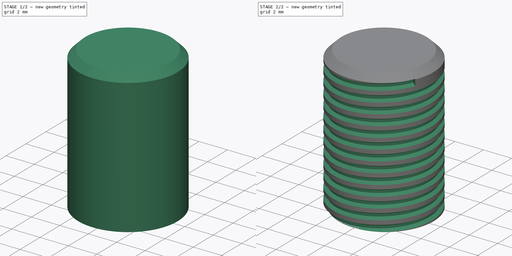
[diagram: build sequence overview — one tinted view per stage of 2, left to right]
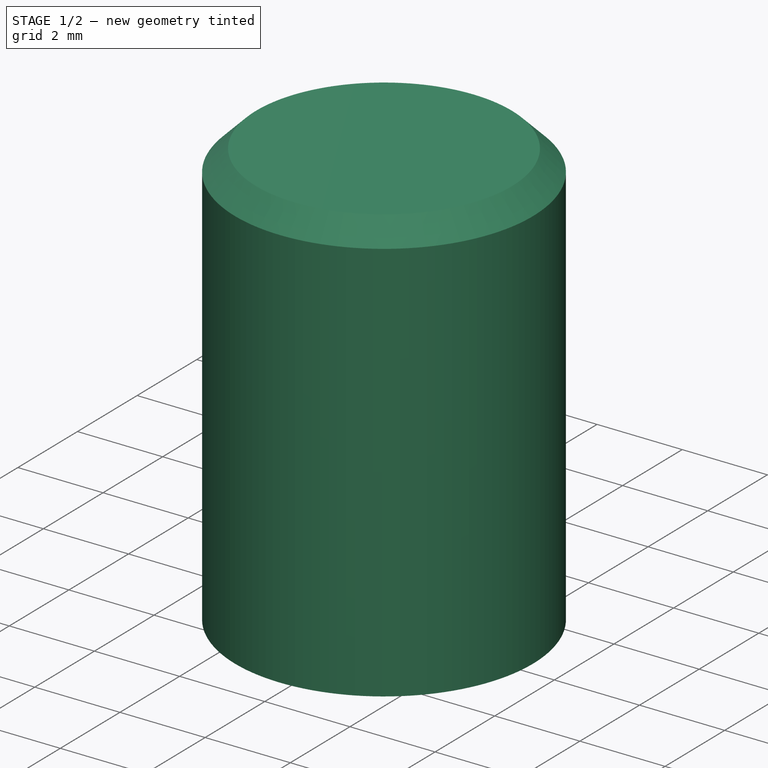
[diagram: stage 1 of 2 — iso view after this stage's code; geometry added in this stage tinted green]
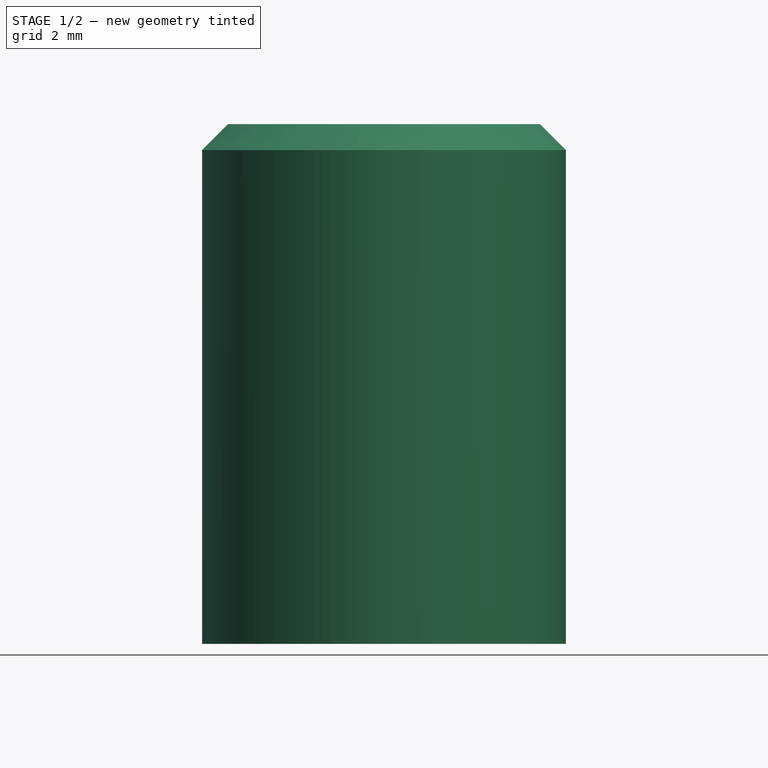
[diagram: stage 1 of 2 — front view after this stage's code; geometry added in this stage tinted green]
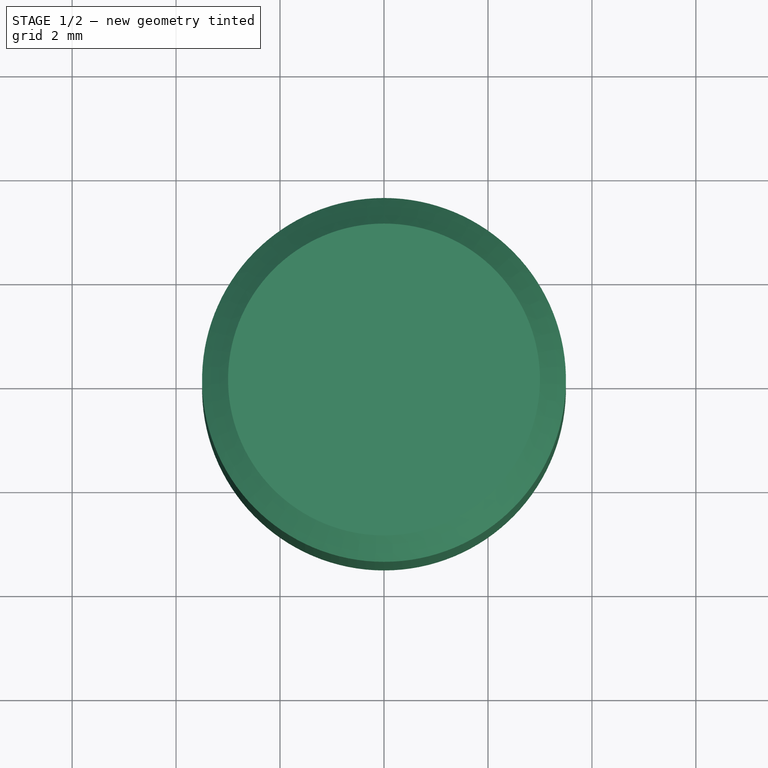
[diagram: stage 1 of 2 — top view after this stage's code; geometry added in this stage tinted green]
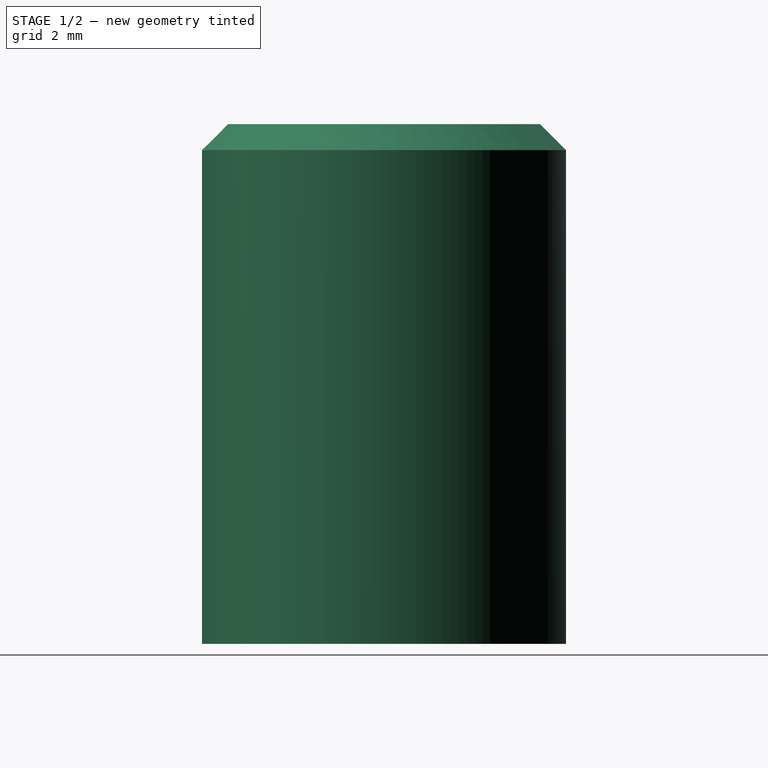
[diagram: stage 1 of 2 — right view after this stage's code; geometry added in this stage tinted green]
FCSTD DOCUMENT  (FreeCAD 0.19R16945 (Git))
Label: B6-M7x0.75x10.0mm
License: All rights reserved
LicenseURL: http://en.wikipedia.org/wiki/All_rights_reserved
objects: Sketcher::SketchObject×2, PartDesign::Pad×1, Part::Helix×1, PartDesign::ShapeBinder×1, PartDesign::Chamfer×1, PartDesign::SubtractivePipe×1, PartDesign::Body×1, App::Part×1
note: 10 computed .brp shape members not serialized (recipe doc carries the construction recipe); baked Part::Feature solids carry a one-line shape summary decoded from their .brp

FEATURE [Sketcher::SketchObject] Sketch
  AttachmentOffset = pos=(0,0,0) rot=(0,0,1;1.5708rad)
  MapMode = 5
  Placement = pos=(0,0,0) rot=(0,0,1;1.5708rad)
  Support = -> [XY_Plane]
  sketch-geometry (1):
    g0: Circle CenterX=0 CenterY=0 CenterZ=0 NormalX=0 NormalY=0 NormalZ=1 AngleXU=0 Radius=3.5
  constraints (2):
    c: Coincident(g0,g-1)
    c: Radius(g0) = 3.5
FEATURE [PartDesign::Pad] Pad
  Length = 10
  Length2 = 100
  Profile = -> Sketch
  Type = 0
FEATURE [Part::Helix] Helix
  Angle = 0
  AttacherType = Attacher::AttachEngine3D
  Height = 9.7
  LocalCoord = 0
  Pitch = 0.75
  Radius = 3.5
  Style = 1
FEATURE [Sketcher::SketchObject] Sketch001
  MapMode = 5
  Placement = pos=(0,0,0) rot=(0.57735,0.57735,0.57735;2.0944rad)
  Support = -> [YZ_Plane]
  sketch-geometry (4):
    g0: LineSegment StartX=3.26326 StartY=-0.12074 StartZ=0 EndX=3.54085 EndY=0.039529 EndZ=0
    g1: LineSegment StartX=3.54085 StartY=0.039529 StartZ=0 EndX=3.54085 EndY=-0.468509 EndZ=0
    g2: LineSegment StartX=3.54085 StartY=-0.468509 StartZ=0 EndX=3.26326 EndY=-0.30824 EndZ=0
    g3: LineSegment StartX=3.26326 StartY=-0.30824 StartZ=0 EndX=3.26326 EndY=-0.12074 EndZ=0
  constraints (9):
    c: Coincident(g0,g1)
    c: Coincident(g1,g2)
    c: Coincident(g2,g3)
    c: Coincident(g3,g0)
    c: Vertical(g1)
    c: Vertical(g3)
    c: Angle(g2,g0) = 1.0472
    c: DistanceY(g3,g3) = 0.1875
    c: Equal(g0,g2)
FEATURE [PartDesign::ShapeBinder] ReferenceHelix
  Support = -> [Helix]
  TraceSupport = false
FEATURE [PartDesign::Chamfer] Chamfer
  Base = -> Pad [Edge3]
  BaseFeature = -> Pad
  Size = 0.5
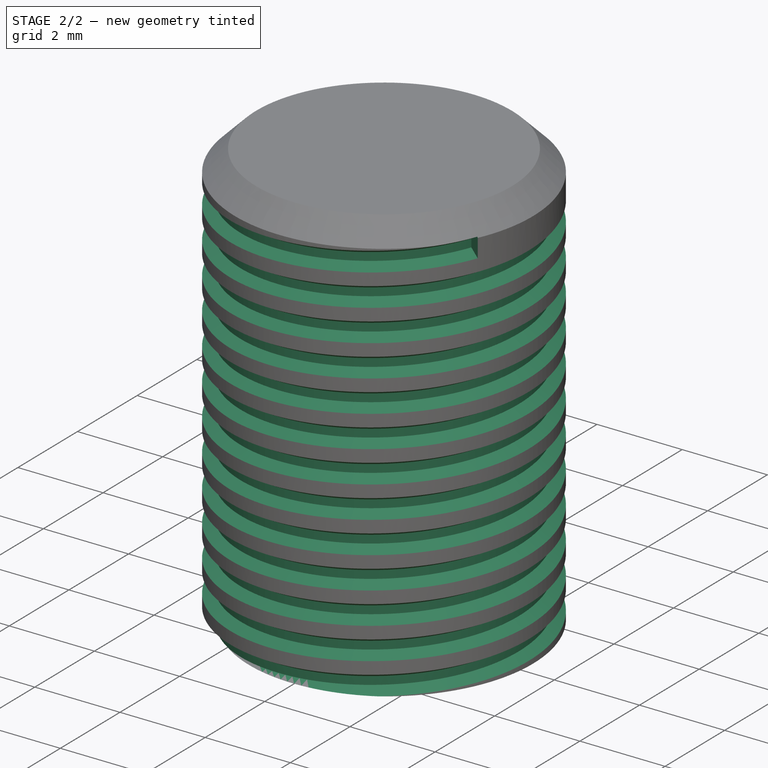
[diagram: stage 2 of 2 — iso view after this stage's code; geometry added in this stage tinted green]
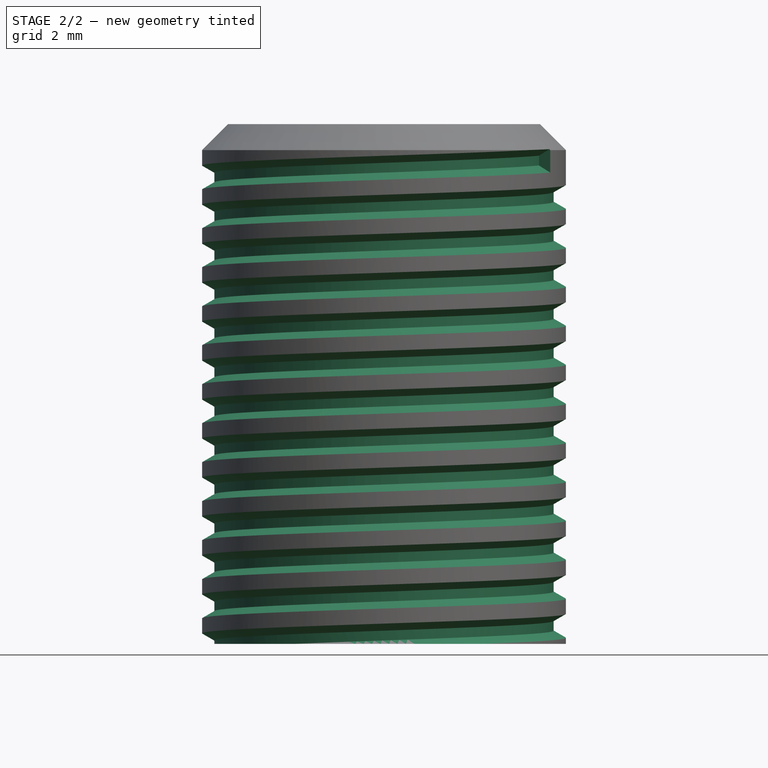
[diagram: stage 2 of 2 — front view after this stage's code; geometry added in this stage tinted green]
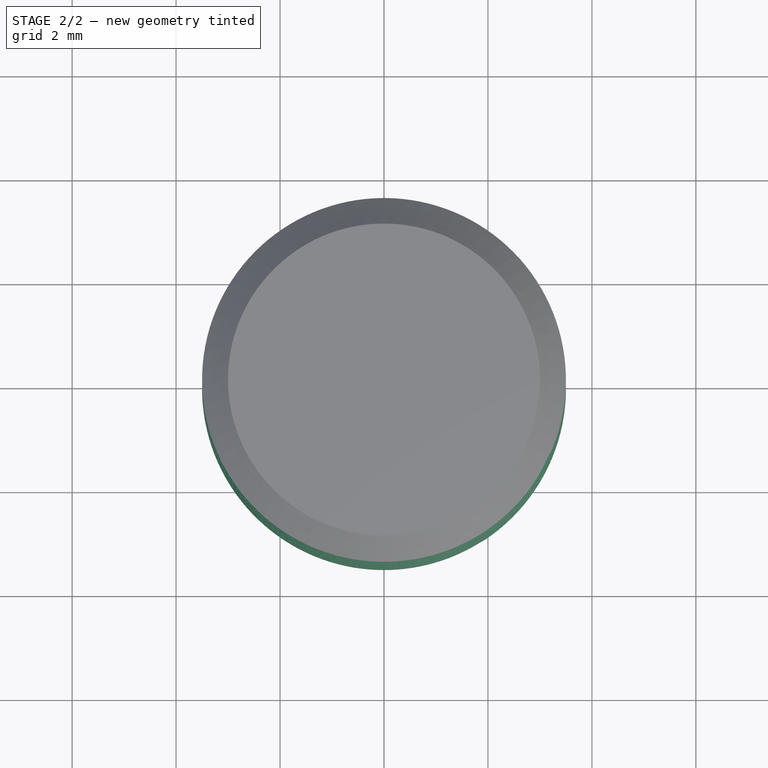
[diagram: stage 2 of 2 — top view after this stage's code; geometry added in this stage tinted green]
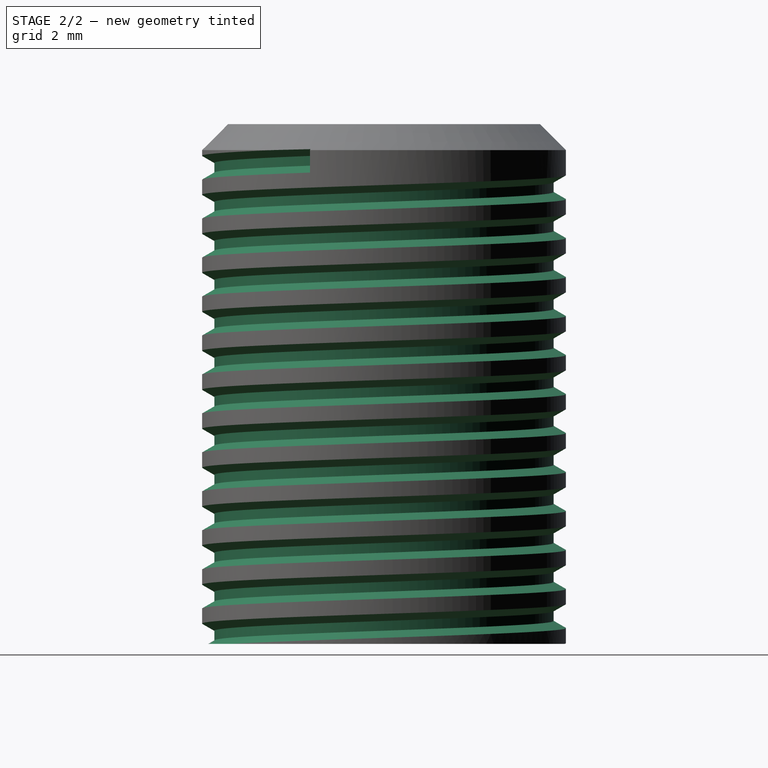
[diagram: stage 2 of 2 — right view after this stage's code; geometry added in this stage tinted green]
FEATURE [PartDesign::SubtractivePipe] SubtractivePipe
  AuxilleryCurvelinear = true
  AuxillerySpineTangent = false
  BaseFeature = -> Chamfer
  Binormal = (0,0,0)
  Mode = 2
  Profile = -> Sketch001
  Spine = -> ReferenceHelix
  SpineTangent = false
  Transformation = 0
  Transition = 0
FEATURE [PartDesign::Body] Body  label="Bushing_M7x0.75x6.5mm_"
  Group = -> [Sketch,Pad,Sketch001,Chamfer,SubtractivePipe,ReferenceHelix]
  Origin = -> Origin
  Tip = -> SubtractivePipe
FEATURE [App::Part] Part  label="RV16_Bushing_M7x0.75x6.5mm"
  Group = -> [Body,Helix]
  Origin = -> Origin001
  Placement = pos=(0,0,2) rot=(0,0,1;0rad)
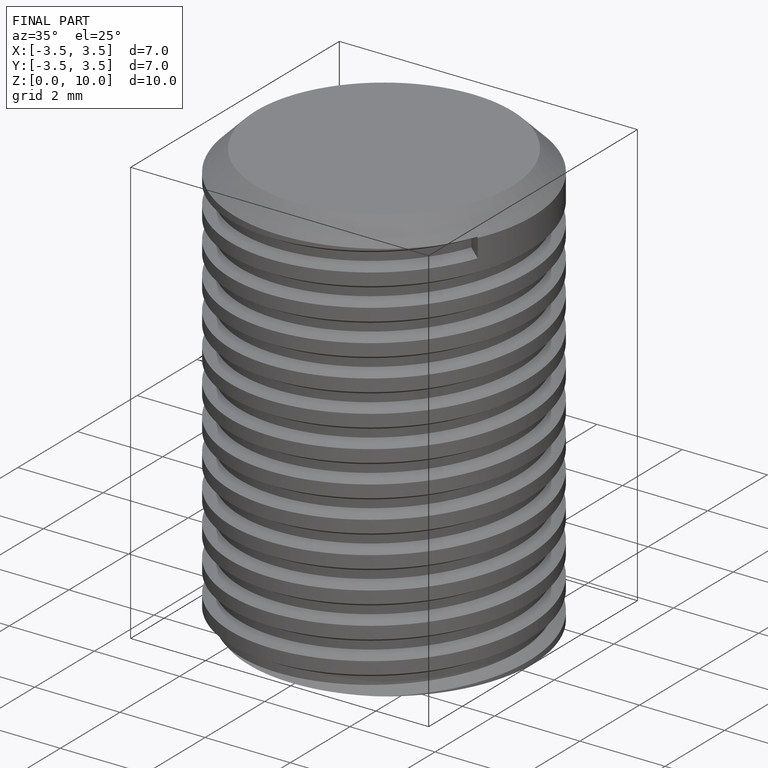
[diagram: finished part — iso view with bounding-box wireframe]
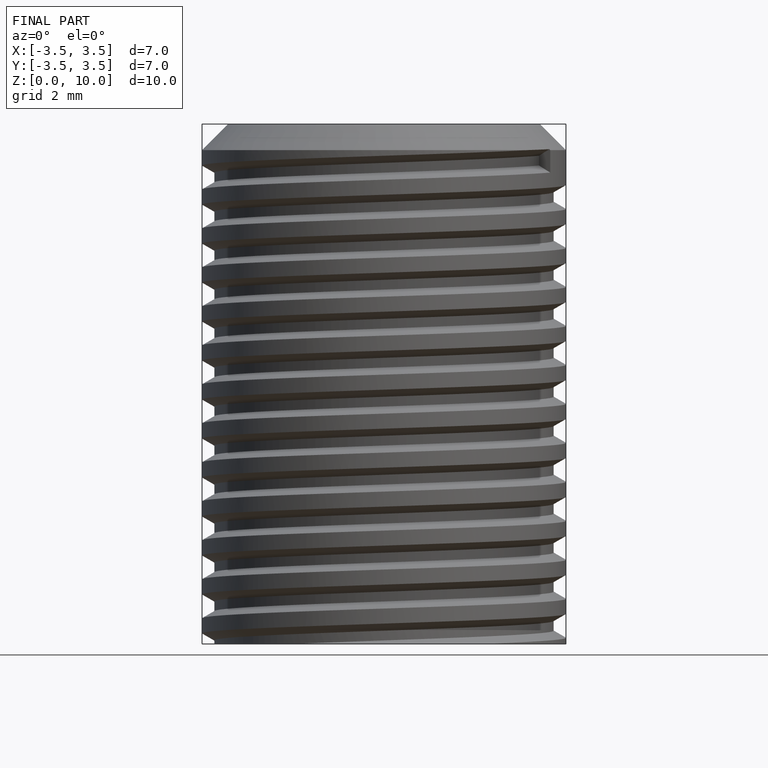
[diagram: finished part — front view with bounding-box wireframe]
